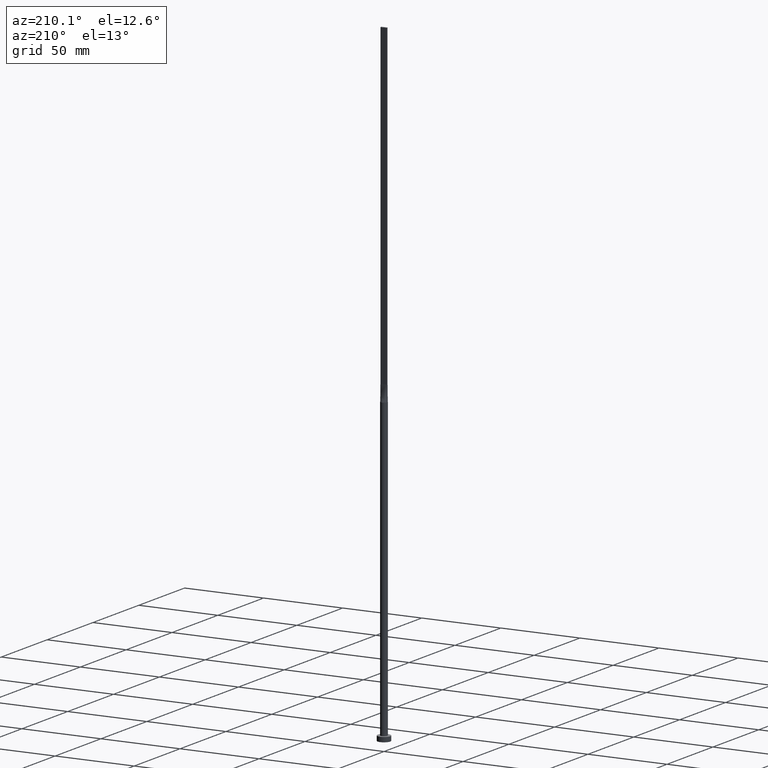
[diagram: clean part render]
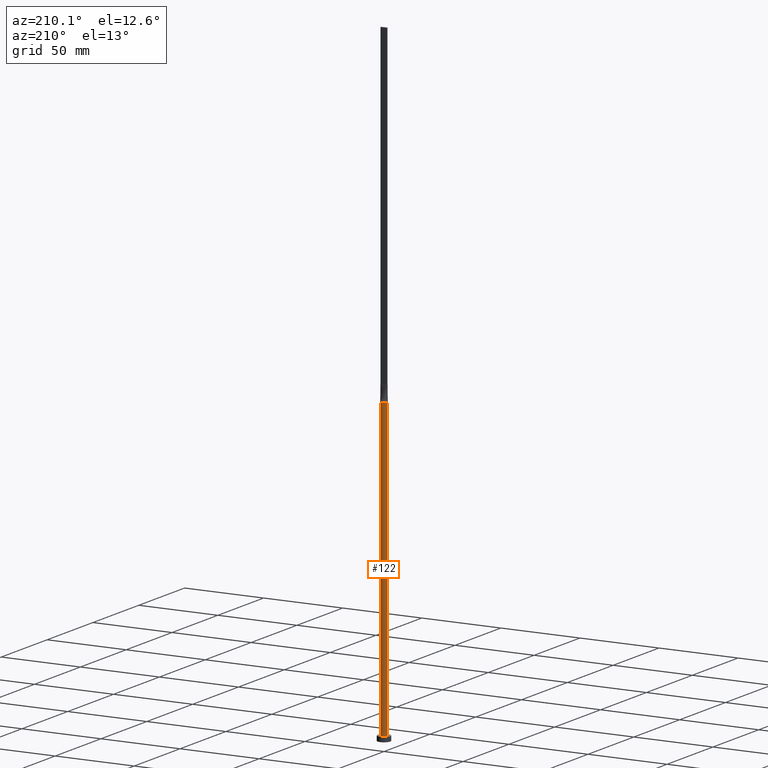
[diagram: same view with one face highlighted and labeled with its STEP entity id]
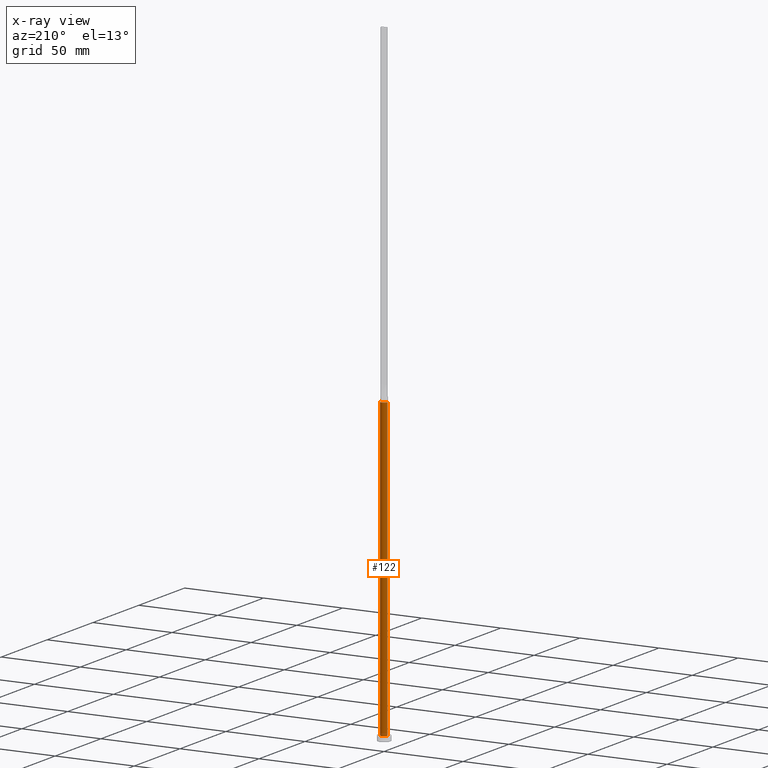
[diagram: x-ray of the same camera — body ghosted, the highlighted face saturated]
A machine part, auxiliary view. The second image highlights one B-rep face of the part: STEP entity #122.
The next image is the same camera in x-ray: the body ghosted, the highlighted face saturated — about 0% of this face is hidden behind the body in this view.
In plain terms, the highlighted cylindrical surface (edge-blend (fillet) strip) has radius 2.1 mm, axis along (-0, -0, -1).
Its self-contained STEP definition (entity closure, byte-faithful):
#8 = CARTESIAN_POINT ( 'NONE',  ( -1.529462611013499451, 1.456669187245239527, 190.0000000000000000 ) ) ;
#14 = VECTOR ( 'NONE', #33, 1000.000000000000000 ) ;
#15 = ORIENTED_EDGE ( 'NONE', *, *, #237, .F. ) ;
#16 = CARTESIAN_POINT ( 'NONE',  ( -2.100000000000000089, -1.284268198382905442E-16, 190.0000000000000000 ) ) ;
#33 = DIRECTION ( 'NONE',  ( -0.000000000000000000, -0.000000000000000000, -1.000000000000000000 ) ) ;
#42 = DIRECTION ( 'NONE',  ( 0.000000000000000000, 0.000000000000000000, 1.000000000000000000 ) ) ;
#51 = CARTESIAN_POINT ( 'NONE',  ( -0.9765948449220482885, 1.875594675604967509, 189.9999999999999716 ) ) ;
#55 = AXIS2_PLACEMENT_3D ( 'NONE', #209, #42, #124 ) ;
#56 = CARTESIAN_POINT ( 'NONE',  ( -1.952271707612931895, 0.7915068550356629817, 190.0000000000000568 ) ) ;
#67 = ORIENTED_EDGE ( 'NONE', *, *, #483, .T. ) ;
#77 = LINE ( 'NONE', #250, #14 ) ;
#83 = DIRECTION ( 'NONE',  ( 1.000000000000000000, 0.000000000000000000, 0.000000000000000000 ) ) ;
#89 = CARTESIAN_POINT ( 'NONE',  ( 1.952271707612931895, 0.7915068550356627597, 190.0000000000000000 ) ) ;
#98 = DIRECTION ( 'NONE',  ( -0.000000000000000000, -0.000000000000000000, -1.000000000000000000 ) ) ;
#100 = AXIS2_PLACEMENT_3D ( 'NONE', #489, #490, #83 ) ;
#103 = VERTEX_POINT ( 'NONE', #16 ) ;
#122 = ADVANCED_FACE ( 'NONE', ( #456 ), #181, .T. ) ;
#124 = DIRECTION ( 'NONE',  ( 1.000000000000000000, 0.000000000000000000, 0.000000000000000000 ) ) ;
#126 = ORIENTED_EDGE ( 'NONE', *, *, #464, .T. ) ;
#136 = CARTESIAN_POINT ( 'NONE',  ( -1.878511276496549032, 0.9591670956957809580, 190.0000000000000853 ) ) ;
#143 = ORIENTED_EDGE ( 'NONE', *, *, #205, .F. ) ;
#146 = DIRECTION ( 'NONE',  ( -1.000000000000000000, 0.000000000000000000, 0.000000000000000000 ) ) ;
#170 = CARTESIAN_POINT ( 'NONE',  ( 0.9765948449220478444, 1.875594675604967065, 189.9999999999999716 ) ) ;
#172 = VERTEX_POINT ( 'NONE', #238 ) ;
#181 = CYLINDRICAL_SURFACE ( 'NONE', #539, 2.100000000000000089 ) ;
#184 = DIRECTION ( 'NONE',  ( 0.000000000000000000, 0.000000000000000000, 1.000000000000000000 ) ) ;
#189 = CARTESIAN_POINT ( 'NONE',  ( 0.000000000000000000, 0.000000000000000000, 190.0000000000000000 ) ) ;
#195 = B_SPLINE_CURVE_WITH_KNOTS ( 'NONE', 3,
 ( #354, #89, #451, #261, #317, #394, #170, #270, #398, #549, #309, #51, #458, #8, #495, #136, #56, #492 ),
 .UNSPECIFIED., .F., .F.,
 ( 4, 2, 2, 2, 2, 2, 2, 2, 4 ),
 ( 0.000000000000000000, 0.1249999999999999167, 0.2499999999999998890, 0.3749999999999998335, 0.4999999999999998890, 0.6249999999999998890, 0.7499999999999998890, 0.8750000000000000000, 1.000000000000000000 ),
 .UNSPECIFIED. ) ;
#205 = EDGE_CURVE ( 'NONE', #103, #508, #77, .T. ) ;
#209 = CARTESIAN_POINT ( 'NONE',  ( 0.000000000000000000, 0.000000000000000000, 190.0000000000000000 ) ) ;
#218 = CARTESIAN_POINT ( 'NONE',  ( 2.100000000000000089, 2.571758278209441957E-16, 3.000000000000000000 ) ) ;
#221 = DIRECTION ( 'NONE',  ( 1.000000000000000000, 0.000000000000000000, 0.000000000000000000 ) ) ;
#237 = EDGE_CURVE ( 'NONE', #275, #103, #377, .T. ) ;
#238 = CARTESIAN_POINT ( 'NONE',  ( 2.002598039528881380, 0.6323997261616642884, 190.0000000000000000 ) ) ;
#250 = CARTESIAN_POINT ( 'NONE',  ( -2.100000000000000089, 0.000000000000000000, 190.0000000000000000 ) ) ;
#261 = CARTESIAN_POINT ( 'NONE',  ( 1.667357759214464608, 1.291791096182927090, 190.0000000000000284 ) ) ;
#270 = CARTESIAN_POINT ( 'NONE',  ( 0.5124799074986362557, 2.051574327850739454, 190.0000000000000284 ) ) ;
#275 = VERTEX_POINT ( 'NONE', #580 ) ;
#279 = CIRCLE ( 'NONE', #477, 2.100000000000000089 ) ;
#299 = ORIENTED_EDGE ( 'NONE', *, *, #407, .F. ) ;
#309 = CARTESIAN_POINT ( 'NONE',  ( -0.5124799074986362557, 2.051574327850739454, 190.0000000000000284 ) ) ;
#317 = CARTESIAN_POINT ( 'NONE',  ( 1.529462611013499451, 1.456669187245239527, 190.0000000000000284 ) ) ;
#354 = CARTESIAN_POINT ( 'NONE',  ( 2.002598039528881380, 0.6323997261616642884, 190.0000000000000000 ) ) ;
#359 = CARTESIAN_POINT ( 'NONE',  ( -2.100000000000000089, 0.000000000000000000, 3.000000000000000000 ) ) ;
#366 = CIRCLE ( 'NONE', #55, 2.100000000000000089 ) ;
#377 = CIRCLE ( 'NONE', #100, 2.100000000000000089 ) ;
#378 = VECTOR ( 'NONE', #98, 1000.000000000000000 ) ;
#386 = EDGE_LOOP ( 'NONE', ( #299, #67, #126, #143, #15, #575 ) ) ;
#394 = CARTESIAN_POINT ( 'NONE',  ( 1.184262492297964098, 1.748903470433445628, 189.9999999999999147 ) ) ;
#398 = CARTESIAN_POINT ( 'NONE',  ( 0.2565105576742081062, 2.100000000000000533, 190.0000000000000853 ) ) ;
#404 = CARTESIAN_POINT ( 'NONE',  ( 2.100000000000000089, 3.372022381799045987E-17, 190.0000000000000000 ) ) ;
#407 = EDGE_CURVE ( 'NONE', #557, #172, #366, .T. ) ;
#451 = CARTESIAN_POINT ( 'NONE',  ( 1.878511276496548366, 0.9591670956957804028, 190.0000000000000568 ) ) ;
#456 = FACE_OUTER_BOUND ( 'NONE', #386, .T. ) ;
#458 = CARTESIAN_POINT ( 'NONE',  ( -1.184262492297963876, 1.748903470433446294, 190.0000000000000284 ) ) ;
#462 = LINE ( 'NONE', #507, #378 ) ;
#464 = EDGE_CURVE ( 'NONE', #525, #508, #279, .T. ) ;
#477 = AXIS2_PLACEMENT_3D ( 'NONE', #552, #184, #221 ) ;
#483 = EDGE_CURVE ( 'NONE', #557, #525, #462, .T. ) ;
#489 = CARTESIAN_POINT ( 'NONE',  ( 0.000000000000000000, 0.000000000000000000, 190.0000000000000000 ) ) ;
#490 = DIRECTION ( 'NONE',  ( 0.000000000000000000, 0.000000000000000000, 1.000000000000000000 ) ) ;
#492 = CARTESIAN_POINT ( 'NONE',  ( -2.002622288503867587, 0.6324075186587619912, 190.0000000000000000 ) ) ;
#495 = CARTESIAN_POINT ( 'NONE',  ( -1.667357759214464830, 1.291791096182927534, 190.0000000000000568 ) ) ;
#507 = CARTESIAN_POINT ( 'NONE',  ( 2.100000000000000089, 2.571758278209441957E-16, 190.0000000000000000 ) ) ;
#508 = VERTEX_POINT ( 'NONE', #359 ) ;
#525 = VERTEX_POINT ( 'NONE', #218 ) ;
#539 = AXIS2_PLACEMENT_3D ( 'NONE', #189, #556, #146 ) ;
#549 = CARTESIAN_POINT ( 'NONE',  ( -0.2565105576742073845, 2.100000000000000533, 189.9999999999999716 ) ) ;
#552 = CARTESIAN_POINT ( 'NONE',  ( 0.000000000000000000, 0.000000000000000000, 3.000000000000000000 ) ) ;
#556 = DIRECTION ( 'NONE',  ( -0.000000000000000000, -0.000000000000000000, -1.000000000000000000 ) ) ;
#557 = VERTEX_POINT ( 'NONE', #404 ) ;
#568 = EDGE_CURVE ( 'NONE', #172, #275, #195, .T. ) ;
#575 = ORIENTED_EDGE ( 'NONE', *, *, #568, .F. ) ;
#580 = CARTESIAN_POINT ( 'NONE',  ( -2.002622288503867587, 0.6324075186587619912, 190.0000000000000000 ) ) ;